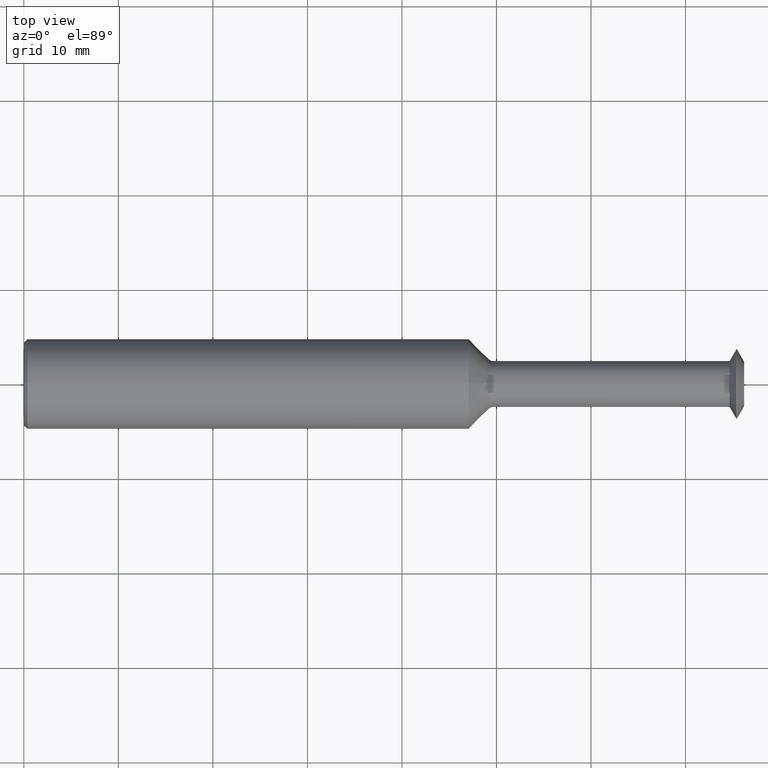
[diagram: clean part render]
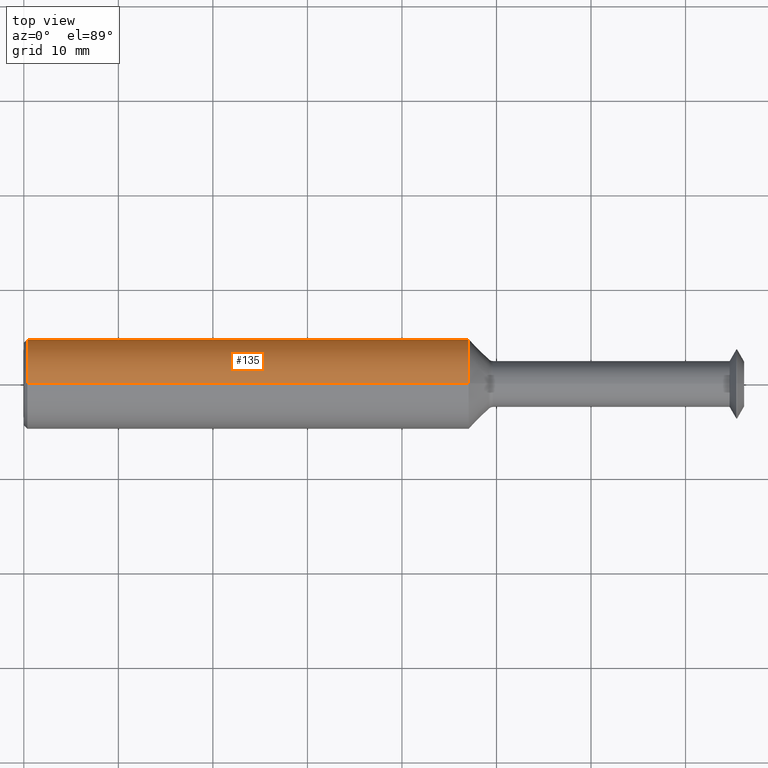
[diagram: same view with one face highlighted and labeled with its STEP entity id]
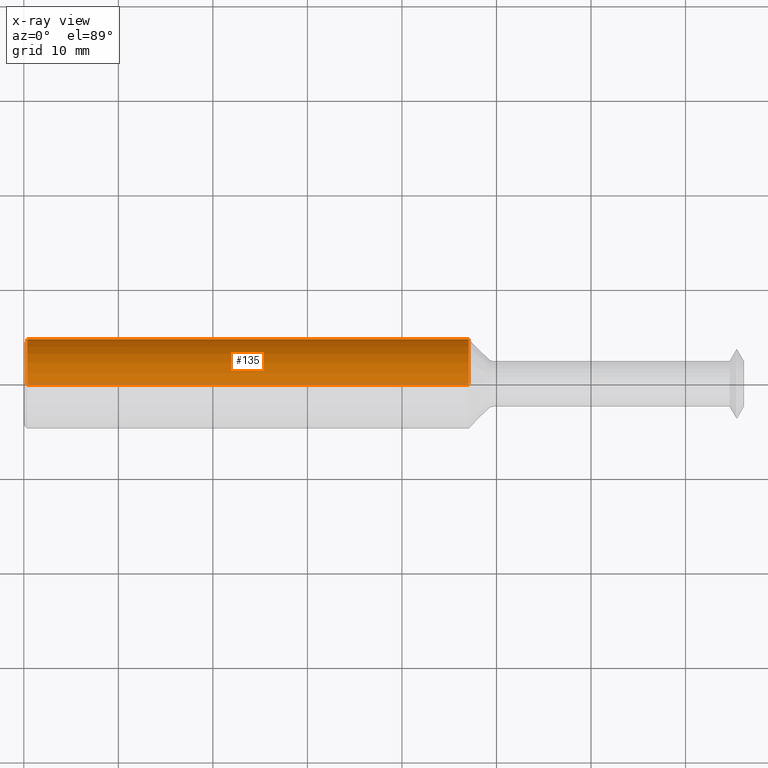
[diagram: x-ray of the same camera — body ghosted, the highlighted face saturated]
A machine part, top view. The second image highlights one B-rep face of the part: STEP entity #135.
The next image is the same camera in x-ray: the body ghosted, the highlighted face saturated — about 3% of this face is hidden behind the body in this view.
In plain terms, the highlighted cylindrical surface (partial cylindrical patch) has radius 4.7587 mm, axis along (-1, -0, -0).
Its self-contained STEP definition (entity closure, byte-faithful):
#6 = CIRCLE ( 'NONE', #171, 0.1873499999999999888 ) ;
#53 = CARTESIAN_POINT ( 'NONE',  ( 0.01499999999999953280, 0.0000000000000000000, 0.1873499999999999888 ) ) ;
#57 = CARTESIAN_POINT ( 'NONE',  ( 1.852559026713177293, 0.0000000000000000000, 0.0000000000000000000 ) ) ;
#59 = AXIS2_PLACEMENT_3D ( 'NONE', #324, #166, #364 ) ;
#62 = EDGE_CURVE ( 'NONE', #72, #406, #392, .T. ) ;
#64 = ORIENTED_EDGE ( 'NONE', *, *, #468, .T. ) ;
#68 = VERTEX_POINT ( 'NONE', #348 ) ;
#72 = VERTEX_POINT ( 'NONE', #319 ) ;
#79 = DIRECTION ( 'NONE',  ( 0.0000000000000000000, 0.0000000000000000000, 1.000000000000000000 ) ) ;
#85 = EDGE_LOOP ( 'NONE', ( #289, #64, #314, #288 ) ) ;
#103 = VERTEX_POINT ( 'NONE', #437 ) ;
#135 = ADVANCED_FACE ( 'NONE', ( #339 ), #464, .T. ) ;
#166 = DIRECTION ( 'NONE',  ( 1.000000000000000000, 0.0000000000000000000, 0.0000000000000000000 ) ) ;
#171 = AXIS2_PLACEMENT_3D ( 'NONE', #57, #234, #414 ) ;
#179 = EDGE_CURVE ( 'NONE', #103, #406, #315, .T. ) ;
#189 = EDGE_CURVE ( 'NONE', #103, #68, #6, .T. ) ;
#200 = CARTESIAN_POINT ( 'NONE',  ( 0.0000000000000000000, 0.0000000000000000000, 0.0000000000000000000 ) ) ;
#216 = CARTESIAN_POINT ( 'NONE',  ( 0.0000000000000000000, 2.294375778202566330E-17, -0.1873499999999999888 ) ) ;
#220 = DIRECTION ( 'NONE',  ( -1.000000000000000000, -0.0000000000000000000, -0.0000000000000000000 ) ) ;
#234 = DIRECTION ( 'NONE',  ( -1.000000000000000000, -0.0000000000000000000, -0.0000000000000000000 ) ) ;
#288 = ORIENTED_EDGE ( 'NONE', *, *, #179, .F. ) ;
#289 = ORIENTED_EDGE ( 'NONE', *, *, #189, .T. ) ;
#302 = CARTESIAN_POINT ( 'NONE',  ( 0.0000000000000000000, 0.0000000000000000000, 0.1873499999999999888 ) ) ;
#314 = ORIENTED_EDGE ( 'NONE', *, *, #62, .T. ) ;
#315 = LINE ( 'NONE', #302, #477 ) ;
#319 = CARTESIAN_POINT ( 'NONE',  ( 0.01499999999999953280, 2.294375778202566330E-17, -0.1873499999999999888 ) ) ;
#324 = CARTESIAN_POINT ( 'NONE',  ( 0.01499999999999953280, 0.0000000000000000000, 0.0000000000000000000 ) ) ;
#339 = FACE_OUTER_BOUND ( 'NONE', #85, .T. ) ;
#346 = LINE ( 'NONE', #216, #438 ) ;
#348 = CARTESIAN_POINT ( 'NONE',  ( 1.852559026713177293, 2.294375778202565714E-17, -0.1873499999999999888 ) ) ;
#364 = DIRECTION ( 'NONE',  ( 0.0000000000000000000, 0.0000000000000000000, -1.000000000000000000 ) ) ;
#381 = DIRECTION ( 'NONE',  ( -1.000000000000000000, -0.0000000000000000000, -0.0000000000000000000 ) ) ;
#391 = AXIS2_PLACEMENT_3D ( 'NONE', #200, #381, #79 ) ;
#392 = CIRCLE ( 'NONE', #59, 0.1873499999999999888 ) ;
#396 = DIRECTION ( 'NONE',  ( -1.000000000000000000, -0.0000000000000000000, -0.0000000000000000000 ) ) ;
#406 = VERTEX_POINT ( 'NONE', #53 ) ;
#414 = DIRECTION ( 'NONE',  ( 0.0000000000000000000, 0.0000000000000000000, 1.000000000000000000 ) ) ;
#437 = CARTESIAN_POINT ( 'NONE',  ( 1.852559026713177293, 0.0000000000000000000, 0.1873499999999999888 ) ) ;
#438 = VECTOR ( 'NONE', #220, 39.37007874015748143 ) ;
#464 = CYLINDRICAL_SURFACE ( 'NONE', #391, 0.1873499999999999888 ) ;
#468 = EDGE_CURVE ( 'NONE', #68, #72, #346, .T. ) ;
#477 = VECTOR ( 'NONE', #396, 39.37007874015748143 ) ;